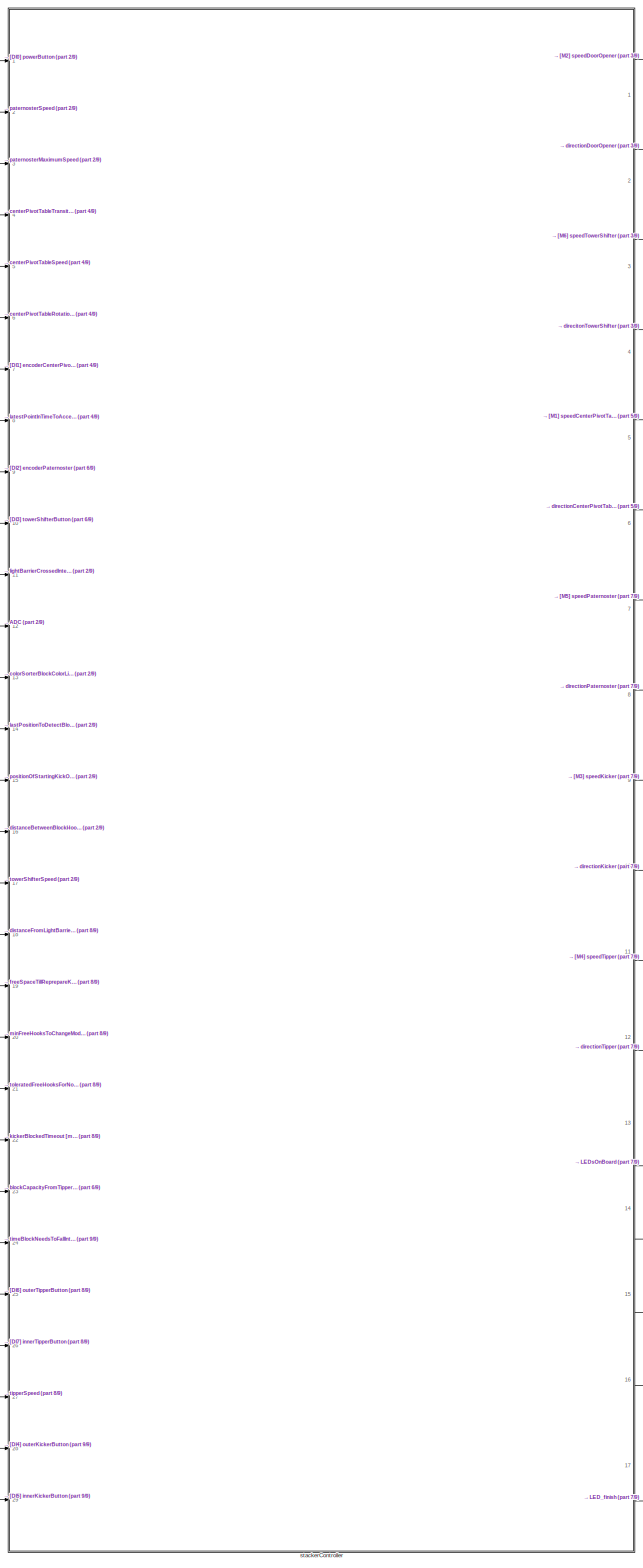
[diagram: root canvas - part 1/9, center side, full height]
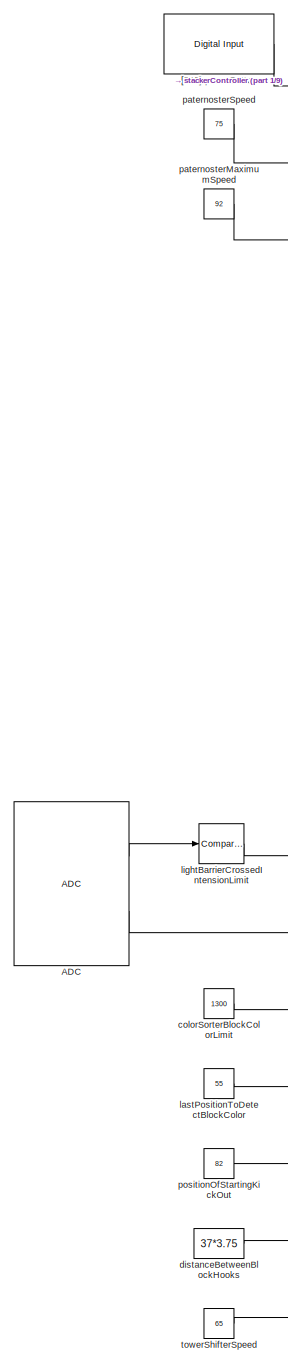
[diagram: root canvas - part 2/9, top left region]
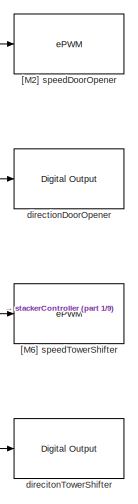
[diagram: root canvas - part 3/9, top right region]
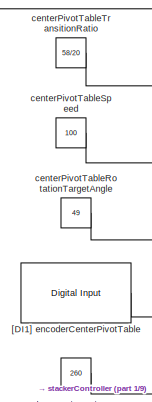
[diagram: root canvas - part 4/9, top left region]
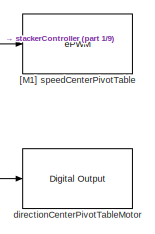
[diagram: root canvas - part 5/9, top right region]
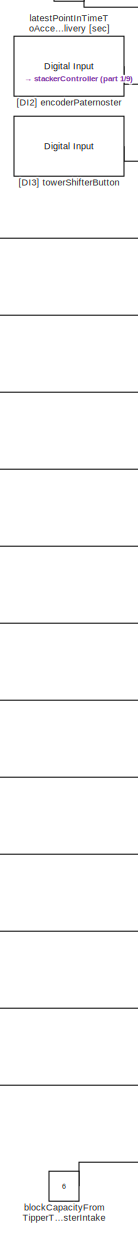
[diagram: root canvas - part 6/9, middle left region]
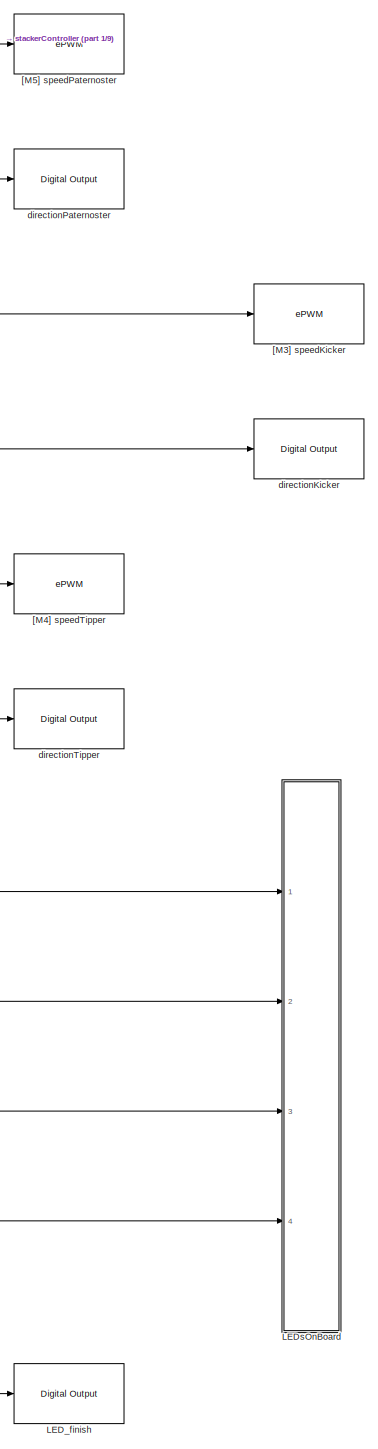
[diagram: root canvas - part 7/9, bottom right region]
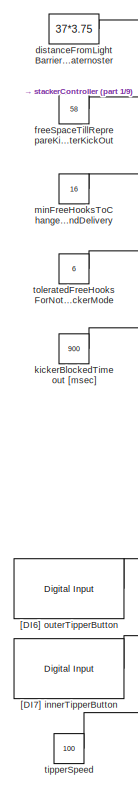
[diagram: root canvas - part 8/9, bottom left region]
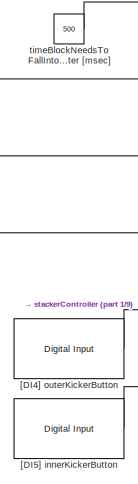
[diagram: root canvas - part 9/9, bottom left region]
MODEL slx_563816558440
KIND model
BLOCK [Reference] ADC  REF=c280xlib/ADC
  Ports = [0, 2]
  SourceBlock = c280xlib/ADC
  SourceType = C280x/C2833x ADC
  Ts = 0.001
  UserDataPersistent = on
  c28xmultiPort = on
  chdma = 1
  conv0 = ADCINA0
  conv1 = ADCINA1
  conv10 = ADCINB2
  conv11 = ADCINB3
  conv12 = ADCINB4
  conv13 = ADCINB5
  conv14 = ADCINB6
  conv15 = ADCINB7
  conv2 = ADCINA2
  conv3 = ADCINA3
  conv4 = ADCINA4
  conv5 = ADCINA5
  conv6 = ADCINA6
  conv7 = ADCINA7
  conv8 = ADCINB0
  conv9 = ADCINB1
  convA0 = ADCINA0
  convA1 = ADCINA1
  convA2 = ADCINA2
  convA3 = ADCINA3
  convA4 = ADCINA4
  convA5 = ADCINA5
  convA6 = ADCINA6
  convA7 = ADCINA7
  convAB0 = ADCINA0 and ADCINB0
  convAB1 = ADCINA1 and ADCINB1
  convAB2 = ADCINA2 and ADCINB2
  convAB3 = ADCINA3 and ADCINB3
  convAB4 = ADCINA4 and ADCINB4
  convAB5 = ADCINA5 and ADCINB5
  convAB6 = ADCINA6 and ADCINB6
  convAB7 = ADCINA7 and ADCINB7
  convB0 = ADCINB0
  convB1 = ADCINB1
  convB2 = ADCINB2
  convB3 = ADCINB3
  convB4 = ADCINB4
  convB5 = ADCINB5
  convB6 = ADCINB6
  convB7 = ADCINB7
  dType = uint16
  endma = off
  numConversionsDouble = 1
  numConversionsSingle = 2
  postInterrupt = off
  sourceSOC = Software
  sourceSOC1 = Software
  sourceSOC2 = ePWMxB
  useMode = Sequential
  useModule = A
  xint2_ADCSOC = 31
BLOCK [Reference] LED_finish  REF=c2833xlib/Digital Output
  GPIO_BIT0_Toggle = off
  GPIO_BIT1_Toggle = off
  GPIO_BIT2_Toggle = off
  GPIO_BIT3_Toggle = off
  GPIO_BIT4_Toggle = off
  GPIO_BIT5_Toggle = off
  GPIO_BIT6_Toggle = off
  GPIO_BIT7_Toggle = off
  GPIO_Bit0 = off
  GPIO_Bit1 = off
  GPIO_Bit2 = on
  GPIO_Bit3 = off
  GPIO_Bit4 = off
  GPIO_Bit5 = off
  GPIO_Bit6 = off
  GPIO_Bit7 = off
  GPIO_Number = GPIO32~GPIO39
  Ports = [1]
  SourceBlock = c2833xlib/Digital Output
  SourceType = C2833x GPIO Digital Output
  UserDataPersistent = on
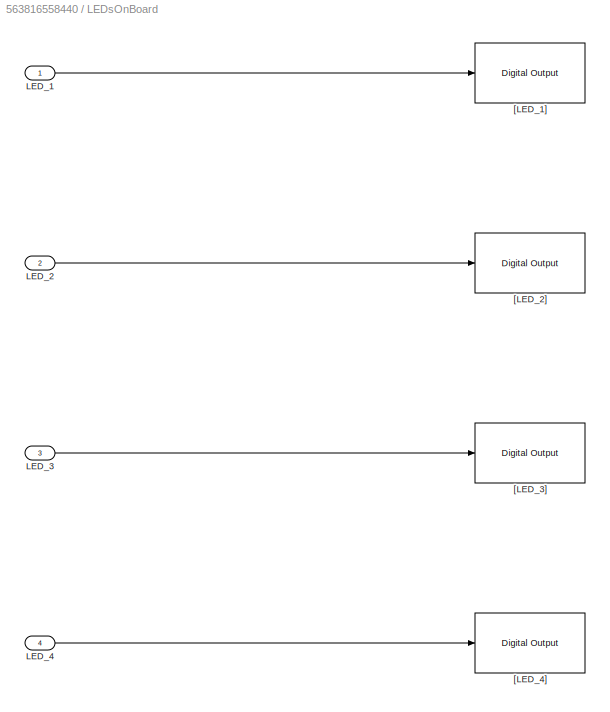
BLOCK [SubSystem] LEDsOnBoard
  Ports = [4]
  RequestExecContextInheritance = off
BLOCK [Inport] LEDsOnBoard/LED_1
  IconDisplay = Port number
BLOCK [Inport] LEDsOnBoard/LED_2
  IconDisplay = Port number
  Port = 2
BLOCK [Inport] LEDsOnBoard/LED_3
  IconDisplay = Port number
  Port = 3
BLOCK [Inport] LEDsOnBoard/LED_4
  IconDisplay = Port number
  Port = 4
BLOCK [Reference] LEDsOnBoard/[LED_1]  REF=c2833xlib/Digital Output
  GPIO_BIT0_Toggle = off
  GPIO_BIT1_Toggle = off
  GPIO_BIT2_Toggle = off
  GPIO_BIT3_Toggle = on
  GPIO_BIT4_Toggle = off
  GPIO_BIT5_Toggle = off
  GPIO_BIT6_Toggle = off
  GPIO_BIT7_Toggle = off
  GPIO_Bit0 = off
  GPIO_Bit1 = off
  GPIO_Bit2 = on
  GPIO_Bit3 = off
  GPIO_Bit4 = off
  GPIO_Bit5 = off
  GPIO_Bit6 = off
  GPIO_Bit7 = off
  GPIO_Number = GPIO56~GPIO63
  Ports = [1]
  SourceBlock = c2833xlib/Digital Output
  SourceType = C2833x GPIO Digital Output
  UserDataPersistent = on
BLOCK [Reference] LEDsOnBoard/[LED_2]  REF=c2833xlib/Digital Output
  GPIO_BIT0_Toggle = off
  GPIO_BIT1_Toggle = off
  GPIO_BIT2_Toggle = off
  GPIO_BIT3_Toggle = off
  GPIO_BIT4_Toggle = off
  GPIO_BIT5_Toggle = off
  GPIO_BIT6_Toggle = off
  GPIO_BIT7_Toggle = off
  GPIO_Bit0 = off
  GPIO_Bit1 = off
  GPIO_Bit2 = off
  GPIO_Bit3 = on
  GPIO_Bit4 = off
  GPIO_Bit5 = off
  GPIO_Bit6 = off
  GPIO_Bit7 = off
  GPIO_Number = GPIO56~GPIO63
  Ports = [1]
  SourceBlock = c2833xlib/Digital Output
  SourceType = C2833x GPIO Digital Output
  UserDataPersistent = on
BLOCK [Reference] LEDsOnBoard/[LED_3]  REF=c2833xlib/Digital Output
  GPIO_BIT0_Toggle = off
  GPIO_BIT1_Toggle = off
  GPIO_BIT2_Toggle = off
  GPIO_BIT3_Toggle = on
  GPIO_BIT4_Toggle = off
  GPIO_BIT5_Toggle = off
  GPIO_BIT6_Toggle = off
  GPIO_BIT7_Toggle = off
  GPIO_Bit0 = off
  GPIO_Bit1 = off
  GPIO_Bit2 = off
  GPIO_Bit3 = off
  GPIO_Bit4 = on
  GPIO_Bit5 = off
  GPIO_Bit6 = off
  GPIO_Bit7 = off
  GPIO_Number = GPIO56~GPIO63
  Ports = [1]
  SourceBlock = c2833xlib/Digital Output
  SourceType = C2833x GPIO Digital Output
  UserDataPersistent = on
BLOCK [Reference] LEDsOnBoard/[LED_4]  REF=c2833xlib/Digital Output
  GPIO_BIT0_Toggle = off
  GPIO_BIT1_Toggle = off
  GPIO_BIT2_Toggle = off
  GPIO_BIT3_Toggle = on
  GPIO_BIT4_Toggle = off
  GPIO_BIT5_Toggle = off
  GPIO_BIT6_Toggle = off
  GPIO_BIT7_Toggle = off
  GPIO_Bit0 = off
  GPIO_Bit1 = off
  GPIO_Bit2 = off
  GPIO_Bit3 = off
  GPIO_Bit4 = off
  GPIO_Bit5 = on
  GPIO_Bit6 = off
  GPIO_Bit7 = off
  GPIO_Number = GPIO56~GPIO63
  Ports = [1]
  SourceBlock = c2833xlib/Digital Output
  SourceType = C2833x GPIO Digital Output
  UserDataPersistent = on
BLOCK [Reference] [DI0] powerButton  REF=c2833xlib/Digital Input
  GPIO_Bit0 = on
  GPIO_Bit0_Qualification = Sync to SYSCLKOUT
  GPIO_Bit1 = off
  GPIO_Bit1_Qualification = Sync to SYSCLKOUT
  GPIO_Bit2 = off
  GPIO_Bit2_Qualification = Sync to SYSCLKOUT
  GPIO_Bit3 = off
  GPIO_Bit3_Qualification = Sync to SYSCLKOUT
  GPIO_Bit4 = off
  GPIO_Bit4_Qualification = Sync to SYSCLKOUT
  GPIO_Bit5 = off
  GPIO_Bit5_Qualification = Sync to SYSCLKOUT
  GPIO_Bit6 = off
  GPIO_Bit6_Qualification = Sync to SYSCLKOUT
  GPIO_Bit7 = off
  GPIO_Bit7_Qualification = Sync to SYSCLKOUT
  GPIO_Number = GPIO24~GPIO31
  Ports = [0, 1]
  Qualification_Period = -1
  SourceBlock = c2833xlib/Digital Input
  SourceType = C2833x GPIO Digital Input
  UserDataPersistent = on
  dataType = boolean
  sampleTime = 0.001
BLOCK [Reference] [DI1] encoderCenterPivotTable  REF=c2833xlib/Digital Input
  GPIO_Bit0 = off
  GPIO_Bit0_Qualification = Sync to SYSCLKOUT
  GPIO_Bit1 = on
  GPIO_Bit1_Qualification = Sync to SYSCLKOUT
  GPIO_Bit2 = off
  GPIO_Bit2_Qualification = Sync to SYSCLKOUT
  GPIO_Bit3 = off
  GPIO_Bit3_Qualification = Sync to SYSCLKOUT
  GPIO_Bit4 = off
  GPIO_Bit4_Qualification = Sync to SYSCLKOUT
  GPIO_Bit5 = off
  GPIO_Bit5_Qualification = Sync to SYSCLKOUT
  GPIO_Bit6 = off
  GPIO_Bit6_Qualification = Sync to SYSCLKOUT
  GPIO_Bit7 = off
  GPIO_Bit7_Qualification = Sync to SYSCLKOUT
  GPIO_Number = GPIO24~GPIO31
  Ports = [0, 1]
  Qualification_Period = -1
  SourceBlock = c2833xlib/Digital Input
  SourceType = C2833x GPIO Digital Input
  UserDataPersistent = on
  dataType = boolean
  sampleTime = 0.001
BLOCK [Reference] [DI2] encoderPaternoster  REF=c2833xlib/Digital Input
  GPIO_Bit0 = off
  GPIO_Bit0_Qualification = Sync to SYSCLKOUT
  GPIO_Bit1 = off
  GPIO_Bit1_Qualification = Sync to SYSCLKOUT
  GPIO_Bit2 = on
  GPIO_Bit2_Qualification = Sync to SYSCLKOUT
  GPIO_Bit3 = off
  GPIO_Bit3_Qualification = Sync to SYSCLKOUT
  GPIO_Bit4 = off
  GPIO_Bit4_Qualification = Sync to SYSCLKOUT
  GPIO_Bit5 = off
  GPIO_Bit5_Qualification = Sync to SYSCLKOUT
  GPIO_Bit6 = off
  GPIO_Bit6_Qualification = Sync to SYSCLKOUT
  GPIO_Bit7 = off
  GPIO_Bit7_Qualification = Sync to SYSCLKOUT
  GPIO_Number = GPIO24~GPIO31
  Ports = [0, 1]
  Qualification_Period = -1
  SourceBlock = c2833xlib/Digital Input
  SourceType = C2833x GPIO Digital Input
  UserDataPersistent = on
  dataType = auto
  sampleTime = 0.001
BLOCK [Reference] [DI3] towerShifterButton  REF=c2833xlib/Digital Input
  GPIO_Bit0 = off
  GPIO_Bit0_Qualification = Sync to SYSCLKOUT
  GPIO_Bit1 = off
  GPIO_Bit1_Qualification = Sync to SYSCLKOUT
  GPIO_Bit2 = off
  GPIO_Bit2_Qualification = Sync to SYSCLKOUT
  GPIO_Bit3 = on
  GPIO_Bit3_Qualification = Sync to SYSCLKOUT
  GPIO_Bit4 = off
  GPIO_Bit4_Qualification = Sync to SYSCLKOUT
  GPIO_Bit5 = off
  GPIO_Bit5_Qualification = Sync to SYSCLKOUT
  GPIO_Bit6 = off
  GPIO_Bit6_Qualification = Sync to SYSCLKOUT
  GPIO_Bit7 = off
  GPIO_Bit7_Qualification = Sync to SYSCLKOUT
  GPIO_Number = GPIO24~GPIO31
  Ports = [0, 1]
  Qualification_Period = -1
  SourceBlock = c2833xlib/Digital Input
  SourceType = C2833x GPIO Digital Input
  UserDataPersistent = on
  dataType = auto
  sampleTime = 0.001
BLOCK [Reference] [DI4] outerKickerButton  REF=c2833xlib/Digital Input
  GPIO_Bit0 = off
  GPIO_Bit0_Qualification = Sync to SYSCLKOUT
  GPIO_Bit1 = off
  GPIO_Bit1_Qualification = Sync to SYSCLKOUT
  GPIO_Bit2 = off
  GPIO_Bit2_Qualification = Sync to SYSCLKOUT
  GPIO_Bit3 = off
  GPIO_Bit3_Qualification = Sync to SYSCLKOUT
  GPIO_Bit4 = off
  GPIO_Bit4_Qualification = Sync to SYSCLKOUT
  GPIO_Bit5 = off
  GPIO_Bit5_Qualification = Sync to SYSCLKOUT
  GPIO_Bit6 = on
  GPIO_Bit6_Qualification = Sync to SYSCLKOUT
  GPIO_Bit7 = off
  GPIO_Bit7_Qualification = Sync to SYSCLKOUT
  GPIO_Number = GPIO24~GPIO31
  Ports = [0, 1]
  Qualification_Period = -1
  SourceBlock = c2833xlib/Digital Input
  SourceType = C2833x GPIO Digital Input
  UserDataPersistent = on
  dataType = boolean
  sampleTime = 0.001
BLOCK [Reference] [DI5] innerKickerButton  REF=c2833xlib/Digital Input
  GPIO_Bit0 = off
  GPIO_Bit0_Qualification = Sync to SYSCLKOUT
  GPIO_Bit1 = off
  GPIO_Bit1_Qualification = Sync to SYSCLKOUT
  GPIO_Bit2 = off
  GPIO_Bit2_Qualification = Sync to SYSCLKOUT
  GPIO_Bit3 = off
  GPIO_Bit3_Qualification = Sync to SYSCLKOUT
  GPIO_Bit4 = off
  GPIO_Bit4_Qualification = Sync to SYSCLKOUT
  GPIO_Bit5 = off
  GPIO_Bit5_Qualification = Sync to SYSCLKOUT
  GPIO_Bit6 = off
  GPIO_Bit6_Qualification = Sync to SYSCLKOUT
  GPIO_Bit7 = on
  GPIO_Bit7_Qualification = Sync to SYSCLKOUT
  GPIO_Number = GPIO24~GPIO31
  Ports = [0, 1]
  Qualification_Period = -1
  SourceBlock = c2833xlib/Digital Input
  SourceType = C2833x GPIO Digital Input
  UserDataPersistent = on
  dataType = boolean
  sampleTime = 0.001
BLOCK [Reference] [DI6] outerTipperButton  REF=c2833xlib/Digital Input
  GPIO_Bit0 = on
  GPIO_Bit0_Qualification = Sync to SYSCLKOUT
  GPIO_Bit1 = off
  GPIO_Bit1_Qualification = Sync to SYSCLKOUT
  GPIO_Bit2 = off
  GPIO_Bit2_Qualification = Sync to SYSCLKOUT
  GPIO_Bit3 = off
  GPIO_Bit3_Qualification = Sync to SYSCLKOUT
  GPIO_Bit4 = off
  GPIO_Bit4_Qualification = Sync to SYSCLKOUT
  GPIO_Bit5 = off
  GPIO_Bit5_Qualification = Sync to SYSCLKOUT
  GPIO_Bit6 = off
  GPIO_Bit6_Qualification = Sync to SYSCLKOUT
  GPIO_Bit7 = off
  GPIO_Bit7_Qualification = Sync to SYSCLKOUT
  GPIO_Number = GPIO32~GPIO39
  Ports = [0, 1]
  Qualification_Period = -1
  SourceBlock = c2833xlib/Digital Input
  SourceType = C2833x GPIO Digital Input
  UserDataPersistent = on
  dataType = boolean
  sampleTime = 0.001
BLOCK [Reference] [DI7] innerTipperButton  REF=c2833xlib/Digital Input
  GPIO_Bit0 = off
  GPIO_Bit0_Qualification = Sync to SYSCLKOUT
  GPIO_Bit1 = on
  GPIO_Bit1_Qualification = Sync to SYSCLKOUT
  GPIO_Bit2 = off
  GPIO_Bit2_Qualification = Sync to SYSCLKOUT
  GPIO_Bit3 = off
  GPIO_Bit3_Qualification = Sync to SYSCLKOUT
  GPIO_Bit4 = off
  GPIO_Bit4_Qualification = Sync to SYSCLKOUT
  GPIO_Bit5 = off
  GPIO_Bit5_Qualification = Sync to SYSCLKOUT
  GPIO_Bit6 = off
  GPIO_Bit6_Qualification = Sync to SYSCLKOUT
  GPIO_Bit7 = off
  GPIO_Bit7_Qualification = Sync to SYSCLKOUT
  GPIO_Number = GPIO32~GPIO39
  Ports = [0, 1]
  Qualification_Period = -1
  SourceBlock = c2833xlib/Digital Input
  SourceType = C2833x GPIO Digital Input
  UserDataPersistent = on
  dataType = boolean
  sampleTime = 0.001
BLOCK [Reference] [M1] speedCenterPivotTable  REF=c280xlib/ePWM
  CMPASource = Specify via dialog
  CMPAUnits = Clock cycles
  CMPAValue_clk = 32000
  CMPAValue_per = 50
  CMPBSource = Input port
  CMPBUnits = Percentages
  CMPBValue_clk = 32000
  CMPBValue_per = 0
  DBSource_ePWMxA = ePWMxA
  DBSource_ePWMxB = ePWMxA
  DBedgeDelay = Positive
  DBperiodSource = Specify via dialog
  DBpolarity = Active high (AH)
  FEDperiod = 0
  HRPWM_CTLMode = Phase control mode
  HRPWM_EDGMode = Both edge
  HRPWM_LoadMode = Counter equals to zero (CTR=ZERO)
  HSclockPrescale = 1
  Ports = [1]
  REDperiod = 0
  SourceBlock = c280xlib/ePWM
  SourceType = C280x/C2833x ePWM
  adcrequestEventA = First event
  adcrequestEventB = First event
  adcstartEventA = Counter equals to zero (CTR=Zero)
  adcstartEventB = Counter equals to zero (CTR=Zero)
  adcstartModuleA = off
  adcstartModuleB = off
  checkMode = off
  chopperDuty = 12.5%
  chopperEnable = off
  chopperFirstwidth = 1
  chopperFrequency = 1
  clockPrescale = 1
  countingMode = Up
  ePWMxACSFenable = off
  ePWMxACSFvalue = Forcing disable
  ePWMxALoadMode = Load on counter equals to zero (CTR=Zero)
  ePWMxASFreload = Zero
  ePWMxAStatus = off
  ePWMxAValue = 0
  ePWMxAactionLogic1 = Do nothing
  ePWMxAactionLogic2 = Clear
  ePWMxAactionLogic3 = Set
  ePWMxAactionLogic4 = Do nothing
  ePWMxAactionLogic5 = Do nothing
  ePWMxAactionLogic6 = Do nothing
  ePWMxAforced = No action
  ePWMxBCSFenable = off
  ePWMxBCSFvalue = Forcing disable
  ePWMxBLoadMode = Load on counter equals to zero (CTR=Zero)
  ePWMxBSFreload = Zero
  ePWMxBStatus = on
  ePWMxBValue = 0
  ePWMxBactionLogic1 = Do nothing
  ePWMxBactionLogic2 = Set
  ePWMxBactionLogic3 = Do nothing
  ePWMxBactionLogic4 = Do nothing
  ePWMxBactionLogic5 = Clear
  ePWMxBactionLogic6 = Do nothing
  ePWMxBforced = No action
  enCMPAshadow = Counter equals to zero
  enCMPBshadow = Counter equals to zero
  enHRPWM = off
  enSFO = on
  enTzCbcIntr = off
  enTzOstIntr = off
  enableDBePWMxA = off
  enableDBePWMxB = off
  intEn = off
  intPrd = First event
  intSel = Counter equals to zero (CTR=Zero)
  periodUnits = Clock cycles
  phaseActive = 0
  phaseActiveEnable = Disable
  phaseDirection = Count down after sync
  synchronizationEnable = off
  synchronizationOption = Disable
  tbshadow = Counter equals to zero
  timerPeriod = -1
  timerPeriod_clk = 64000
  timerPeriod_sec = 0.0001
  timerSource = Specify via dialog
  tripZoneoption = One-shot trip (OSHT)
  tripZonesource = Specify via dialog
  tzselCBC1 = off
  tzselCBC2 = off
  tzselCBC3 = off
  tzselCBC4 = off
  tzselCBC5 = off
  tzselCBC6 = off
  tzselOSHT1 = off
  tzselOSHT2 = off
  tzselOSHT3 = off
  tzselOSHT4 = off
  tzselOSHT5 = off
  tzselOSHT6 = off
  useModule = ePWM2
BLOCK [Reference] [M2] speedDoorOpener  REF=c280xlib/ePWM
  CMPASource = Specify via dialog
  CMPAUnits = Clock cycles
  CMPAValue_clk = 32000
  CMPAValue_per = 50
  CMPBSource = Input port
  CMPBUnits = Percentages
  CMPBValue_clk = 32000
  CMPBValue_per = 0
  DBSource_ePWMxA = ePWMxA
  DBSource_ePWMxB = ePWMxA
  DBedgeDelay = Positive
  DBperiodSource = Specify via dialog
  DBpolarity = Active high (AH)
  FEDperiod = 0
  HRPWM_CTLMode = Phase control mode
  HRPWM_EDGMode = Both edge
  HRPWM_LoadMode = Counter equals to zero (CTR=ZERO)
  HSclockPrescale = 1
  Ports = [1]
  REDperiod = 0
  SourceBlock = c280xlib/ePWM
  SourceType = C280x/C2833x ePWM
  adcrequestEventA = First event
  adcrequestEventB = First event
  adcstartEventA = Counter equals to zero (CTR=Zero)
  adcstartEventB = Counter equals to zero (CTR=Zero)
  adcstartModuleA = off
  adcstartModuleB = off
  checkMode = off
  chopperDuty = 12.5%
  chopperEnable = off
  chopperFirstwidth = 1
  chopperFrequency = 1
  clockPrescale = 1
  countingMode = Up
  ePWMxACSFenable = off
  ePWMxACSFvalue = Forcing disable
  ePWMxALoadMode = Load on counter equals to zero (CTR=Zero)
  ePWMxASFreload = Zero
  ePWMxAStatus = off
  ePWMxAValue = 0
  ePWMxAactionLogic1 = Do nothing
  ePWMxAactionLogic2 = Clear
  ePWMxAactionLogic3 = Set
  ePWMxAactionLogic4 = Do nothing
  ePWMxAactionLogic5 = Do nothing
  ePWMxAactionLogic6 = Do nothing
  ePWMxAforced = No action
  ePWMxBCSFenable = off
  ePWMxBCSFvalue = Forcing disable
  ePWMxBLoadMode = Load on counter equals to zero (CTR=Zero)
  ePWMxBSFreload = Zero
  ePWMxBStatus = on
  ePWMxBValue = 0
  ePWMxBactionLogic1 = Do nothing
  ePWMxBactionLogic2 = Set
  ePWMxBactionLogic3 = Do nothing
  ePWMxBactionLogic4 = Do nothing
  ePWMxBactionLogic5 = Clear
  ePWMxBactionLogic6 = Do nothing
  ePWMxBforced = No action
  enCMPAshadow = Counter equals to zero
  enCMPBshadow = Counter equals to zero
  enHRPWM = off
  enSFO = on
  enTzCbcIntr = off
  enTzOstIntr = off
  enableDBePWMxA = off
  enableDBePWMxB = off
  intEn = off
  intPrd = First event
  intSel = Counter equals to zero (CTR=Zero)
  periodUnits = Clock cycles
  phaseActive = 0
  phaseActiveEnable = Disable
  phaseDirection = Count down after sync
  synchronizationEnable = off
  synchronizationOption = Disable
  tbshadow = Counter equals to zero
  timerPeriod = -1
  timerPeriod_clk = 64000
  timerPeriod_sec = 0.0001
  timerSource = Specify via dialog
  tripZoneoption = One-shot trip (OSHT)
  tripZonesource = Specify via dialog
  tzselCBC1 = off
  tzselCBC2 = off
  tzselCBC3 = off
  tzselCBC4 = off
  tzselCBC5 = off
  tzselCBC6 = off
  tzselOSHT1 = off
  tzselOSHT2 = off
  tzselOSHT3 = off
  tzselOSHT4 = off
  tzselOSHT5 = off
  tzselOSHT6 = off
  useModule = ePWM1
BLOCK [Reference] [M3] speedKicker  REF=c280xlib/ePWM
  CMPASource = Specify via dialog
  CMPAUnits = Clock cycles
  CMPAValue_clk = 32000
  CMPAValue_per = 50
  CMPBSource = Input port
  CMPBUnits = Percentages
  CMPBValue_clk = 32000
  CMPBValue_per = 0
  DBSource_ePWMxA = ePWMxA
  DBSource_ePWMxB = ePWMxA
  DBedgeDelay = Positive
  DBperiodSource = Specify via dialog
  DBpolarity = Active high (AH)
  FEDperiod = 0
  HRPWM_CTLMode = Phase control mode
  HRPWM_EDGMode = Both edge
  HRPWM_LoadMode = Counter equals to zero (CTR=ZERO)
  HSclockPrescale = 1
  Ports = [1]
  REDperiod = 0
  SourceBlock = c280xlib/ePWM
  SourceType = C280x/C2833x ePWM
  adcrequestEventA = First event
  adcrequestEventB = First event
  adcstartEventA = Counter equals to zero (CTR=Zero)
  adcstartEventB = Counter equals to zero (CTR=Zero)
  adcstartModuleA = off
  adcstartModuleB = off
  checkMode = off
  chopperDuty = 12.5%
  chopperEnable = off
  chopperFirstwidth = 1
  chopperFrequency = 1
  clockPrescale = 1
  countingMode = Up
  ePWMxACSFenable = off
  ePWMxACSFvalue = Forcing disable
  ePWMxALoadMode = Load on counter equals to zero (CTR=Zero)
  ePWMxASFreload = Zero
  ePWMxAStatus = off
  ePWMxAValue = 0
  ePWMxAactionLogic1 = Do nothing
  ePWMxAactionLogic2 = Clear
  ePWMxAactionLogic3 = Set
  ePWMxAactionLogic4 = Do nothing
  ePWMxAactionLogic5 = Do nothing
  ePWMxAactionLogic6 = Do nothing
  ePWMxAforced = No action
  ePWMxBCSFenable = off
  ePWMxBCSFvalue = Forcing disable
  ePWMxBLoadMode = Load on counter equals to zero (CTR=Zero)
  ePWMxBSFreload = Zero
  ePWMxBStatus = on
  ePWMxBValue = 0
  ePWMxBactionLogic1 = Do nothing
  ePWMxBactionLogic2 = Set
  ePWMxBactionLogic3 = Do nothing
  ePWMxBactionLogic4 = Do nothing
  ePWMxBactionLogic5 = Clear
  ePWMxBactionLogic6 = Do nothing
  ePWMxBforced = No action
  enCMPAshadow = Counter equals to zero
  enCMPBshadow = Counter equals to zero
  enHRPWM = off
  enSFO = on
  enTzCbcIntr = off
  enTzOstIntr = off
  enableDBePWMxA = off
  enableDBePWMxB = off
  intEn = off
  intPrd = First event
  intSel = Counter equals to zero (CTR=Zero)
  periodUnits = Clock cycles
  phaseActive = 0
  phaseActiveEnable = Disable
  phaseDirection = Count down after sync
  synchronizationEnable = off
  synchronizationOption = Disable
  tbshadow = Counter equals to zero
  timerPeriod = -1
  timerPeriod_clk = 64000
  timerPeriod_sec = 0.0001
  timerSource = Specify via dialog
  tripZoneoption = One-shot trip (OSHT)
  tripZonesource = Specify via dialog
  tzselCBC1 = off
  tzselCBC2 = off
  tzselCBC3 = off
  tzselCBC4 = off
  tzselCBC5 = off
  tzselCBC6 = off
  tzselOSHT1 = off
  tzselOSHT2 = off
  tzselOSHT3 = off
  tzselOSHT4 = off
  tzselOSHT5 = off
  tzselOSHT6 = off
  useModule = ePWM6
BLOCK [Reference] [M4] speedTipper  REF=c280xlib/ePWM
  CMPASource = Specify via dialog
  CMPAUnits = Clock cycles
  CMPAValue_clk = 32000
  CMPAValue_per = 50
  CMPBSource = Input port
  CMPBUnits = Percentages
  CMPBValue_clk = 32000
  CMPBValue_per = 0
  DBSource_ePWMxA = ePWMxA
  DBSource_ePWMxB = ePWMxA
  DBedgeDelay = Positive
  DBperiodSource = Specify via dialog
  DBpolarity = Active high (AH)
  FEDperiod = 0
  HRPWM_CTLMode = Phase control mode
  HRPWM_EDGMode = Both edge
  HRPWM_LoadMode = Counter equals to zero (CTR=ZERO)
  HSclockPrescale = 1
  Ports = [1]
  REDperiod = 0
  SourceBlock = c280xlib/ePWM
  SourceType = C280x/C2833x ePWM
  adcrequestEventA = First event
  adcrequestEventB = First event
  adcstartEventA = Counter equals to zero (CTR=Zero)
  adcstartEventB = Counter equals to zero (CTR=Zero)
  adcstartModuleA = off
  adcstartModuleB = off
  checkMode = off
  chopperDuty = 12.5%
  chopperEnable = off
  chopperFirstwidth = 1
  chopperFrequency = 1
  clockPrescale = 1
  countingMode = Up
  ePWMxACSFenable = off
  ePWMxACSFvalue = Forcing disable
  ePWMxALoadMode = Load on counter equals to zero (CTR=Zero)
  ePWMxASFreload = Zero
  ePWMxAStatus = off
  ePWMxAValue = 0
  ePWMxAactionLogic1 = Do nothing
  ePWMxAactionLogic2 = Clear
  ePWMxAactionLogic3 = Set
  ePWMxAactionLogic4 = Do nothing
  ePWMxAactionLogic5 = Do nothing
  ePWMxAactionLogic6 = Do nothing
  ePWMxAforced = No action
  ePWMxBCSFenable = off
  ePWMxBCSFvalue = Forcing disable
  ePWMxBLoadMode = Load on counter equals to zero (CTR=Zero)
  ePWMxBSFreload = Zero
  ePWMxBStatus = on
  ePWMxBValue = 0
  ePWMxBactionLogic1 = Do nothing
  ePWMxBactionLogic2 = Set
  ePWMxBactionLogic3 = Do nothing
  ePWMxBactionLogic4 = Do nothing
  ePWMxBactionLogic5 = Clear
  ePWMxBactionLogic6 = Do nothing
  ePWMxBforced = No action
  enCMPAshadow = Counter equals to zero
  enCMPBshadow = Counter equals to zero
  enHRPWM = off
  enSFO = on
  enTzCbcIntr = off
  enTzOstIntr = off
  enableDBePWMxA = off
  enableDBePWMxB = off
  intEn = off
  intPrd = First event
  intSel = Counter equals to zero (CTR=Zero)
  periodUnits = Clock cycles
  phaseActive = 0
  phaseActiveEnable = Disable
  phaseDirection = Count down after sync
  synchronizationEnable = off
  synchronizationOption = Disable
  tbshadow = Counter equals to zero
  timerPeriod = -1
  timerPeriod_clk = 64000
  timerPeriod_sec = 0.0001
  timerSource = Specify via dialog
  tripZoneoption = One-shot trip (OSHT)
  tripZonesource = Specify via dialog
  tzselCBC1 = off
  tzselCBC2 = off
  tzselCBC3 = off
  tzselCBC4 = off
  tzselCBC5 = off
  tzselCBC6 = off
  tzselOSHT1 = off
  tzselOSHT2 = off
  tzselOSHT3 = off
  tzselOSHT4 = off
  tzselOSHT5 = off
  tzselOSHT6 = off
  useModule = ePWM5
BLOCK [Reference] [M5] speedPaternoster  REF=c280xlib/ePWM
  CMPASource = Specify via dialog
  CMPAUnits = Clock cycles
  CMPAValue_clk = 32000
  CMPAValue_per = 50
  CMPBSource = Input port
  CMPBUnits = Percentages
  CMPBValue_clk = 32000
  CMPBValue_per = 0
  DBSource_ePWMxA = ePWMxA
  DBSource_ePWMxB = ePWMxA
  DBedgeDelay = Positive
  DBperiodSource = Specify via dialog
  DBpolarity = Active high (AH)
  FEDperiod = 0
  HRPWM_CTLMode = Phase control mode
  HRPWM_EDGMode = Both edge
  HRPWM_LoadMode = Counter equals to zero (CTR=ZERO)
  HSclockPrescale = 1
  Ports = [1]
  REDperiod = 0
  SourceBlock = c280xlib/ePWM
  SourceType = C280x/C2833x ePWM
  adcrequestEventA = First event
  adcrequestEventB = First event
  adcstartEventA = Counter equals to zero (CTR=Zero)
  adcstartEventB = Counter equals to zero (CTR=Zero)
  adcstartModuleA = off
  adcstartModuleB = off
  checkMode = off
  chopperDuty = 12.5%
  chopperEnable = off
  chopperFirstwidth = 1
  chopperFrequency = 1
  clockPrescale = 1
  countingMode = Up
  ePWMxACSFenable = off
  ePWMxACSFvalue = Forcing disable
  ePWMxALoadMode = Load on counter equals to zero (CTR=Zero)
  ePWMxASFreload = Zero
  ePWMxAStatus = off
  ePWMxAValue = 0
  ePWMxAactionLogic1 = Do nothing
  ePWMxAactionLogic2 = Clear
  ePWMxAactionLogic3 = Set
  ePWMxAactionLogic4 = Do nothing
  ePWMxAactionLogic5 = Do nothing
  ePWMxAactionLogic6 = Do nothing
  ePWMxAforced = No action
  ePWMxBCSFenable = off
  ePWMxBCSFvalue = Forcing disable
  ePWMxBLoadMode = Load on counter equals to zero (CTR=Zero)
  ePWMxBSFreload = Zero
  ePWMxBStatus = on
  ePWMxBValue = 0
  ePWMxBactionLogic1 = Do nothing
  ePWMxBactionLogic2 = Set
  ePWMxBactionLogic3 = Do nothing
  ePWMxBactionLogic4 = Do nothing
  ePWMxBactionLogic5 = Clear
  ePWMxBactionLogic6 = Do nothing
  ePWMxBforced = No action
  enCMPAshadow = Counter equals to zero
  enCMPBshadow = Counter equals to zero
  enHRPWM = off
  enSFO = on
  enTzCbcIntr = off
  enTzOstIntr = off
  enableDBePWMxA = off
  enableDBePWMxB = off
  intEn = off
  intPrd = First event
  intSel = Counter equals to zero (CTR=Zero)
  periodUnits = Clock cycles
  phaseActive = 0
  phaseActiveEnable = Disable
  phaseDirection = Count down after sync
  synchronizationEnable = off
  synchronizationOption = Disable
  tbshadow = Counter equals to zero
  timerPeriod = -1
  timerPeriod_clk = 64000
  timerPeriod_sec = 0.0001
  timerSource = Specify via dialog
  tripZoneoption = One-shot trip (OSHT)
  tripZonesource = Specify via dialog
  tzselCBC1 = off
  tzselCBC2 = off
  tzselCBC3 = off
  tzselCBC4 = off
  tzselCBC5 = off
  tzselCBC6 = off
  tzselOSHT1 = off
  tzselOSHT2 = off
  tzselOSHT3 = off
  tzselOSHT4 = off
  tzselOSHT5 = off
  tzselOSHT6 = off
  useModule = ePWM4
BLOCK [Reference] [M6] speedTowerShifter  REF=c280xlib/ePWM
  CMPASource = Specify via dialog
  CMPAUnits = Clock cycles
  CMPAValue_clk = 32000
  CMPAValue_per = 50
  CMPBSource = Input port
  CMPBUnits = Percentages
  CMPBValue_clk = 32000
  CMPBValue_per = 0
  DBSource_ePWMxA = ePWMxA
  DBSource_ePWMxB = ePWMxA
  DBedgeDelay = Positive
  DBperiodSource = Specify via dialog
  DBpolarity = Active high (AH)
  FEDperiod = 0
  HRPWM_CTLMode = Phase control mode
  HRPWM_EDGMode = Both edge
  HRPWM_LoadMode = Counter equals to zero (CTR=ZERO)
  HSclockPrescale = 1
  Ports = [1]
  REDperiod = 0
  SourceBlock = c280xlib/ePWM
  SourceType = C280x/C2833x ePWM
  adcrequestEventA = First event
  adcrequestEventB = First event
  adcstartEventA = Counter equals to zero (CTR=Zero)
  adcstartEventB = Counter equals to zero (CTR=Zero)
  adcstartModuleA = off
  adcstartModuleB = off
  checkMode = off
  chopperDuty = 12.5%
  chopperEnable = off
  chopperFirstwidth = 1
  chopperFrequency = 1
  clockPrescale = 1
  countingMode = Up
  ePWMxACSFenable = off
  ePWMxACSFvalue = Forcing disable
  ePWMxALoadMode = Load on counter equals to zero (CTR=Zero)
  ePWMxASFreload = Zero
  ePWMxAStatus = off
  ePWMxAValue = 0
  ePWMxAactionLogic1 = Do nothing
  ePWMxAactionLogic2 = Clear
  ePWMxAactionLogic3 = Set
  ePWMxAactionLogic4 = Do nothing
  ePWMxAactionLogic5 = Do nothing
  ePWMxAactionLogic6 = Do nothing
  ePWMxAforced = No action
  ePWMxBCSFenable = off
  ePWMxBCSFvalue = Forcing disable
  ePWMxBLoadMode = Load on counter equals to zero (CTR=Zero)
  ePWMxBSFreload = Zero
  ePWMxBStatus = on
  ePWMxBValue = 0
  ePWMxBactionLogic1 = Do nothing
  ePWMxBactionLogic2 = Set
  ePWMxBactionLogic3 = Do nothing
  ePWMxBactionLogic4 = Do nothing
  ePWMxBactionLogic5 = Clear
  ePWMxBactionLogic6 = Do nothing
  ePWMxBforced = No action
  enCMPAshadow = Counter equals to zero
  enCMPBshadow = Counter equals to zero
  enHRPWM = off
  enSFO = on
  enTzCbcIntr = off
  enTzOstIntr = off
  enableDBePWMxA = off
  enableDBePWMxB = off
  intEn = off
  intPrd = First event
  intSel = Counter equals to zero (CTR=Zero)
  periodUnits = Clock cycles
  phaseActive = 0
  phaseActiveEnable = Disable
  phaseDirection = Count down after sync
  synchronizationEnable = off
  synchronizationOption = Disable
  tbshadow = Counter equals to zero
  timerPeriod = -1
  timerPeriod_clk = 64000
  timerPeriod_sec = 0.0001
  timerSource = Specify via dialog
  tripZoneoption = One-shot trip (OSHT)
  tripZonesource = Specify via dialog
  tzselCBC1 = off
  tzselCBC2 = off
  tzselCBC3 = off
  tzselCBC4 = off
  tzselCBC5 = off
  tzselCBC6 = off
  tzselOSHT1 = off
  tzselOSHT2 = off
  tzselOSHT3 = off
  tzselOSHT4 = off
  tzselOSHT5 = off
  tzselOSHT6 = off
  useModule = ePWM3
BLOCK [Constant] blockCapacityFromTipperToPaternosterIntake
  OutDataTypeStr = uint16
  OutMin = 0
  Value = 6
BLOCK [Constant] centerPivotTableRotationTargetAngle
  OutDataTypeStr = single
  Value = 49
BLOCK [Constant] centerPivotTableSpeed
  OutDataTypeStr = uint16
  OutMax = 100
  OutMin = 0
  Value = 100
BLOCK [Constant] centerPivotTableTransitionRatio
  OutDataTypeStr = single
  Value = 58/20
BLOCK [Constant] colorSorterBlockColorLimit
  OutDataTypeStr = uint16
  OutMax = 4095
  OutMin = 0
  Value = 1300
BLOCK [Reference] direcitonTowerShifter  REF=c2833xlib/Digital Output
  GPIO_BIT0_Toggle = off
  GPIO_BIT1_Toggle = off
  GPIO_BIT2_Toggle = off
  GPIO_BIT3_Toggle = off
  GPIO_BIT4_Toggle = off
  GPIO_BIT5_Toggle = off
  GPIO_BIT6_Toggle = off
  GPIO_BIT7_Toggle = off
  GPIO_Bit0 = off
  GPIO_Bit1 = on
  GPIO_Bit2 = off
  GPIO_Bit3 = off
  GPIO_Bit4 = off
  GPIO_Bit5 = off
  GPIO_Bit6 = off
  GPIO_Bit7 = off
  GPIO_Number = GPIO16~GPIO23
  Ports = [1]
  SourceBlock = c2833xlib/Digital Output
  SourceType = C2833x GPIO Digital Output
  UserDataPersistent = on
BLOCK [Reference] directionCenterPivotTableMotor  REF=c2833xlib/Digital Output
  GPIO_BIT0_Toggle = off
  GPIO_BIT1_Toggle = off
  GPIO_BIT2_Toggle = off
  GPIO_BIT3_Toggle = off
  GPIO_BIT4_Toggle = off
  GPIO_BIT5_Toggle = off
  GPIO_BIT6_Toggle = off
  GPIO_BIT7_Toggle = off
  GPIO_Bit0 = off
  GPIO_Bit1 = off
  GPIO_Bit2 = off
  GPIO_Bit3 = off
  GPIO_Bit4 = off
  GPIO_Bit5 = on
  GPIO_Bit6 = off
  GPIO_Bit7 = off
  GPIO_Number = GPIO16~GPIO23
  Ports = [1]
  SourceBlock = c2833xlib/Digital Output
  SourceType = C2833x GPIO Digital Output
  UserDataPersistent = on
BLOCK [Reference] directionDoorOpener  REF=c2833xlib/Digital Output
  GPIO_BIT0_Toggle = off
  GPIO_BIT1_Toggle = off
  GPIO_BIT2_Toggle = off
  GPIO_BIT3_Toggle = off
  GPIO_BIT4_Toggle = off
  GPIO_BIT5_Toggle = off
  GPIO_BIT6_Toggle = off
  GPIO_BIT7_Toggle = off
  GPIO_Bit0 = off
  GPIO_Bit1 = off
  GPIO_Bit2 = off
  GPIO_Bit3 = off
  GPIO_Bit4 = on
  GPIO_Bit5 = off
  GPIO_Bit6 = off
  GPIO_Bit7 = off
  GPIO_Number = GPIO16~GPIO23
  Ports = [1]
  SourceBlock = c2833xlib/Digital Output
  SourceType = C2833x GPIO Digital Output
  UserDataPersistent = on
BLOCK [Reference] directionKicker  REF=c2833xlib/Digital Output
  GPIO_BIT0_Toggle = off
  GPIO_BIT1_Toggle = off
  GPIO_BIT2_Toggle = off
  GPIO_BIT3_Toggle = off
  GPIO_BIT4_Toggle = off
  GPIO_BIT5_Toggle = off
  GPIO_BIT6_Toggle = off
  GPIO_BIT7_Toggle = off
  GPIO_Bit0 = on
  GPIO_Bit1 = off
  GPIO_Bit2 = off
  GPIO_Bit3 = off
  GPIO_Bit4 = off
  GPIO_Bit5 = off
  GPIO_Bit6 = off
  GPIO_Bit7 = off
  GPIO_Number = GPIO16~GPIO23
  Ports = [1]
  SourceBlock = c2833xlib/Digital Output
  SourceType = C2833x GPIO Digital Output
  UserDataPersistent = on
BLOCK [Reference] directionPaternoster  REF=c2833xlib/Digital Output
  GPIO_BIT0_Toggle = off
  GPIO_BIT1_Toggle = off
  GPIO_BIT2_Toggle = off
  GPIO_BIT3_Toggle = off
  GPIO_BIT4_Toggle = off
  GPIO_BIT5_Toggle = off
  GPIO_BIT6_Toggle = off
  GPIO_BIT7_Toggle = off
  GPIO_Bit0 = off
  GPIO_Bit1 = off
  GPIO_Bit2 = off
  GPIO_Bit3 = on
  GPIO_Bit4 = off
  GPIO_Bit5 = off
  GPIO_Bit6 = off
  GPIO_Bit7 = off
  GPIO_Number = GPIO16~GPIO23
  Ports = [1]
  SourceBlock = c2833xlib/Digital Output
  SourceType = C2833x GPIO Digital Output
  UserDataPersistent = on
BLOCK [Reference] directionTipper  REF=c2833xlib/Digital Output
  GPIO_BIT0_Toggle = off
  GPIO_BIT1_Toggle = off
  GPIO_BIT2_Toggle = off
  GPIO_BIT3_Toggle = off
  GPIO_BIT4_Toggle = off
  GPIO_BIT5_Toggle = off
  GPIO_BIT6_Toggle = off
  GPIO_BIT7_Toggle = off
  GPIO_Bit0 = off
  GPIO_Bit1 = off
  GPIO_Bit2 = off
  GPIO_Bit3 = off
  GPIO_Bit4 = off
  GPIO_Bit5 = off
  GPIO_Bit6 = off
  GPIO_Bit7 = on
  GPIO_Number = GPIO8~GPIO15
  Ports = [1]
  SourceBlock = c2833xlib/Digital Output
  SourceType = C2833x GPIO Digital Output
  UserDataPersistent = on
BLOCK [Constant] distanceBetweenBlockHooks
  OutDataTypeStr = uint16
  OutMin = 0
  Value = 37*3.75
BLOCK [Constant] distanceFromLightBarrierToTDCOfPaternoster
  OutDataTypeStr = uint16
  OutMin = 0
  Value = 37*3.75
BLOCK [Constant] freeSpaceTillReprepareKickerAfterKickOut
  OutDataTypeStr = uint32
  OutMin = 0
  Value = 58
BLOCK [Constant] kickerBlockedTimeout [msec]
  OutDataTypeStr = uint16
  OutMin = 0
  Value = 900
BLOCK [Constant] lastPositionToDetectBlockColor
  OutDataTypeStr = uint32
  OutMin = 0
  Value = 55
BLOCK [Constant] latestPointInTimeToAcceptBlockDelivery [sec]
  OutDataTypeStr = uint16
  OutMax = 300
  OutMin = 0
  Value = 260
BLOCK [Reference] lightBarrierCrossedIntensionLimit  REF=simulink/Logic and Bit
Operations/Compare
To Constant
  OutDataTypeStr = boolean
  Ports = [1, 1]
  SourceBlock = simulink/Logic and Bit\nOperations/Compare\nTo Constant
  SourceType = Compare To Constant
  ZeroCross = on
  const = 1350
  relop = <
BLOCK [Constant] minFreeHooksToChangeModeToWaitingForSecondDelivery
  OutDataTypeStr = uint16
  OutMin = 0
  Value = 16
BLOCK [Constant] paternosterMaximumSpeed
  OutDataTypeStr = uint16
  OutMax = 100
  OutMin = 0
  Value = 92
BLOCK [Constant] paternosterSpeed
  OutDataTypeStr = uint16
  OutMax = 100
  OutMin = 0
  Value = 75
BLOCK [Constant] positionOfStartingKickOut
  OutDataTypeStr = uint32
  OutMin = 0
  Value = 82
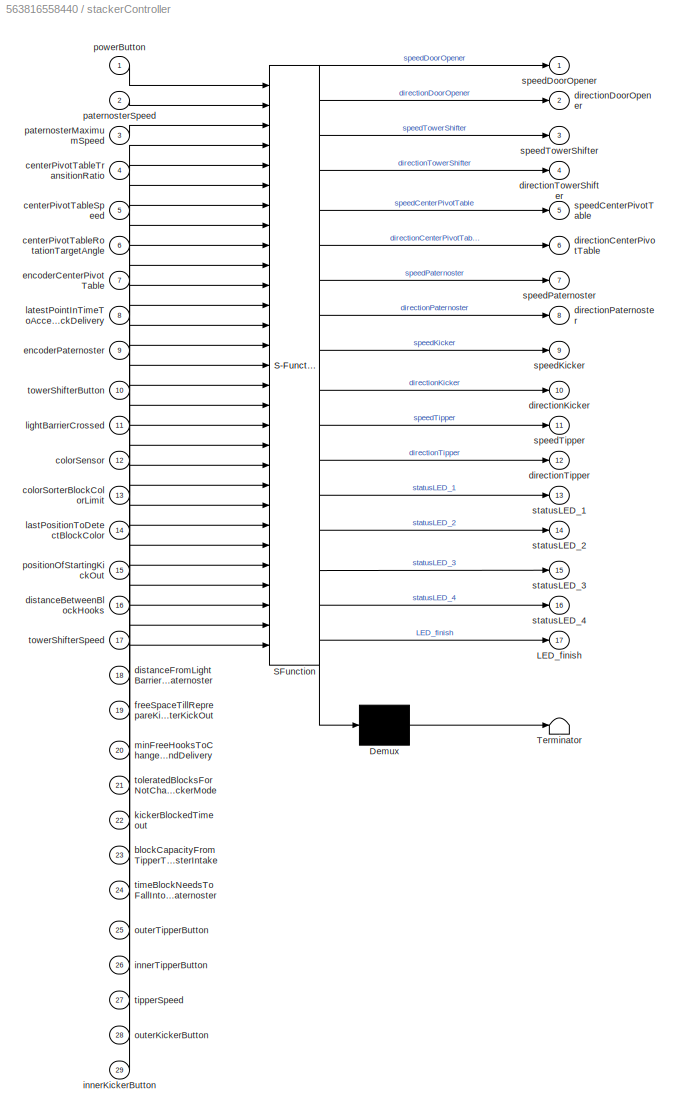
BLOCK [SubSystem] stackerController
  ErrorFcn = Stateflow.Translate.translate
  PermitHierarchicalResolution = ExplicitOnly
  Ports = [29, 17]
  RequestExecContextInheritance = off
  SFBlockType = Chart
  TreatAsAtomicUnit = on
BLOCK [Demux] stackerController/ Demux 
  Outputs = 1
  Ports = [1, 1]
BLOCK [S-Function] stackerController/ SFunction 
  EnableBusSupport = on
  FunctionName = sf_sfun
  PortCounts = [29 18]
  Ports = [29, 18]
  Tag = Stateflow S-Function superProgramParameterObserving 3
BLOCK [Terminator] stackerController/ Terminator 
BLOCK [Outport] stackerController/LED_finish
  IconDisplay = Port number
  Port = 17
BLOCK [Inport] stackerController/blockCapacityFromTipperToPaternosterIntake
  IconDisplay = Port number
  Port = 23
BLOCK [Inport] stackerController/centerPivotTableRotationTargetAngle
  IconDisplay = Port number
  Port = 6
BLOCK [Inport] stackerController/centerPivotTableSpeed
  IconDisplay = Port number
  Port = 5
BLOCK [Inport] stackerController/centerPivotTableTransitionRatio
  IconDisplay = Port number
  Port = 4
BLOCK [Inport] stackerController/colorSensor
  IconDisplay = Port number
  Port = 12
BLOCK [Inport] stackerController/colorSorterBlockColorLimit
  IconDisplay = Port number
  Port = 13
BLOCK [Outport] stackerController/directionCenterPivotTable
  IconDisplay = Port number
  Port = 6
BLOCK [Outport] stackerController/directionDoorOpener
  IconDisplay = Port number
  Port = 2
BLOCK [Outport] stackerController/directionKicker
  IconDisplay = Port number
  Port = 10
BLOCK [Outport] stackerController/directionPaternoster
  IconDisplay = Port number
  Port = 8
BLOCK [Outport] stackerController/directionTipper
  IconDisplay = Port number
  Port = 12
BLOCK [Outport] stackerController/directionTowerShifter
  IconDisplay = Port number
  Port = 4
BLOCK [Inport] stackerController/distanceBetweenBlockHooks
  IconDisplay = Port number
  Port = 16
BLOCK [Inport] stackerController/distanceFromLightBarrierToTDCOfPaternoster
  IconDisplay = Port number
  Port = 18
BLOCK [Inport] stackerController/encoderCenterPivotTable
  IconDisplay = Port number
  Port = 7
BLOCK [Inport] stackerController/encoderPaternoster
  IconDisplay = Port number
  Port = 9
BLOCK [Inport] stackerController/freeSpaceTillReprepareKickerAfterKickOut
  IconDisplay = Port number
  Port = 19
BLOCK [Inport] stackerController/innerKickerButton
  IconDisplay = Port number
  Port = 29
BLOCK [Inport] stackerController/innerTipperButton
  IconDisplay = Port number
  Port = 26
BLOCK [Inport] stackerController/kickerBlockedTimeout
  IconDisplay = Port number
  Port = 22
BLOCK [Inport] stackerController/lastPositionToDetectBlockColor
  IconDisplay = Port number
  Port = 14
BLOCK [Inport] stackerController/latestPointInTimeToAcceptBlockDelivery
  IconDisplay = Port number
  Port = 8
BLOCK [Inport] stackerController/lightBarrierCrossed
  IconDisplay = Port number
  Port = 11
BLOCK [Inport] stackerController/minFreeHooksToChangeModeToWaitingForSecondDelivery
  IconDisplay = Port number
  Port = 20
BLOCK [Inport] stackerController/outerKickerButton
  IconDisplay = Port number
  Port = 28
BLOCK [Inport] stackerController/outerTipperButton
  IconDisplay = Port number
  Port = 25
BLOCK [Inport] stackerController/paternosterMaximumSpeed
  IconDisplay = Port number
  Port = 3
BLOCK [Inport] stackerController/paternosterSpeed
  IconDisplay = Port number
  Port = 2
BLOCK [Inport] stackerController/positionOfStartingKickOut
  IconDisplay = Port number
  Port = 15
BLOCK [Inport] stackerController/powerButton
  IconDisplay = Port number
BLOCK [Outport] stackerController/speedCenterPivotTable
  IconDisplay = Port number
  Port = 5
BLOCK [Outport] stackerController/speedDoorOpener
  IconDisplay = Port number
BLOCK [Outport] stackerController/speedKicker
  IconDisplay = Port number
  Port = 9
BLOCK [Outport] stackerController/speedPaternoster
  IconDisplay = Port number
  Port = 7
BLOCK [Outport] stackerController/speedTipper
  IconDisplay = Port number
  Port = 11
BLOCK [Outport] stackerController/speedTowerShifter
  IconDisplay = Port number
  Port = 3
BLOCK [Outport] stackerController/statusLED_1
  IconDisplay = Port number
  Port = 13
BLOCK [Outport] stackerController/statusLED_2
  IconDisplay = Port number
  Port = 14
BLOCK [Outport] stackerController/statusLED_3
  IconDisplay = Port number
  Port = 15
BLOCK [Outport] stackerController/statusLED_4
  IconDisplay = Port number
  Port = 16
BLOCK [Inport] stackerController/timeBlockNeedsToFallIntoTowerFromTopOfPaternoster
  IconDisplay = Port number
  Port = 24
BLOCK [Inport] stackerController/tipperSpeed
  IconDisplay = Port number
  Port = 27
BLOCK [Inport] stackerController/toleratedBlocksForNotChangingStackerMode
  IconDisplay = Port number
  Port = 21
BLOCK [Inport] stackerController/towerShifterButton
  IconDisplay = Port number
  Port = 10
BLOCK [Inport] stackerController/towerShifterSpeed
  IconDisplay = Port number
  Port = 17
BLOCK [Constant] timeBlockNeedsToFallIntorTowerFromTopOfPaternoster [msec]
  OutDataTypeStr = uint16
  OutMin = 0
  Value = 500
BLOCK [Constant] tipperSpeed
  OutDataTypeStr = uint16
  OutMax = 100
  OutMin = 0
  Value = 100
BLOCK [Constant] toleratedFreeHooksForNotChangingStackerMode
  OutDataTypeStr = uint16
  OutMin = 0
  Value = 6
BLOCK [Constant] towerShifterSpeed
  OutDataTypeStr = uint16
  OutMax = 100
  OutMin = 0
  Value = 65
LINE ADC:1 -> lightBarrierCrossedIntensionLimit:1
LINE ADC:2 -> stackerController:12
LINE LEDsOnBoard/LED_1:1 -> LEDsOnBoard/[LED_1]:1
LINE LEDsOnBoard/LED_2:1 -> LEDsOnBoard/[LED_2]:1
LINE LEDsOnBoard/LED_3:1 -> LEDsOnBoard/[LED_3]:1
LINE LEDsOnBoard/LED_4:1 -> LEDsOnBoard/[LED_4]:1
LINE [DI0] powerButton:1 -> stackerController:1
LINE [DI1] encoderCenterPivotTable:1 -> stackerController:7
LINE [DI2] encoderPaternoster:1 -> stackerController:9
LINE [DI3] towerShifterButton:1 -> stackerController:10
LINE [DI4] outerKickerButton:1 -> stackerController:28
LINE [DI5] innerKickerButton:1 -> stackerController:29
LINE [DI6] outerTipperButton:1 -> stackerController:25
LINE [DI7] innerTipperButton:1 -> stackerController:26
LINE blockCapacityFromTipperToPaternosterIntake:1 -> stackerController:23
LINE centerPivotTableRotationTargetAngle:1 -> stackerController:6
LINE centerPivotTableSpeed:1 -> stackerController:5
LINE centerPivotTableTransitionRatio:1 -> stackerController:4
LINE colorSorterBlockColorLimit:1 -> stackerController:13
LINE distanceBetweenBlockHooks:1 -> stackerController:16
LINE distanceFromLightBarrierToTDCOfPaternoster:1 -> stackerController:18
LINE freeSpaceTillReprepareKickerAfterKickOut:1 -> stackerController:19
LINE kickerBlockedTimeout [msec]:1 -> stackerController:22
LINE lastPositionToDetectBlockColor:1 -> stackerController:14
LINE latestPointInTimeToAcceptBlockDelivery [sec]:1 -> stackerController:8
LINE lightBarrierCrossedIntensionLimit:1 -> stackerController:11
LINE minFreeHooksToChangeModeToWaitingForSecondDelivery:1 -> stackerController:20
LINE paternosterMaximumSpeed:1 -> stackerController:3
LINE paternosterSpeed:1 -> stackerController:2
LINE positionOfStartingKickOut:1 -> stackerController:15
LINE stackerController:1 -> [M2] speedDoorOpener:1
LINE stackerController:10 -> directionKicker:1
LINE stackerController:11 -> [M4] speedTipper:1
LINE stackerController:12 -> directionTipper:1
LINE stackerController:13 -> LEDsOnBoard:1
LINE stackerController:14 -> LEDsOnBoard:2
LINE stackerController:15 -> LEDsOnBoard:3
LINE stackerController:16 -> LEDsOnBoard:4
LINE stackerController:17 -> LED_finish:1
LINE stackerController:2 -> directionDoorOpener:1
LINE stackerController:3 -> [M6] speedTowerShifter:1
LINE stackerController:4 -> direcitonTowerShifter:1
LINE stackerController:5 -> [M1] speedCenterPivotTable:1
LINE stackerController:6 -> directionCenterPivotTableMotor:1
LINE stackerController:7 -> [M5] speedPaternoster:1
LINE stackerController:8 -> directionPaternoster:1
LINE stackerController:9 -> [M3] speedKicker:1
LINE timeBlockNeedsToFallIntorTowerFromTopOfPaternoster [msec]:1 -> stackerController:24
LINE tipperSpeed:1 -> stackerController:27
LINE toleratedFreeHooksForNotChangingStackerMode:1 -> stackerController:21
LINE towerShifterSpeed:1 -> stackerController:17
CHART stackerController states=184 transitions=225
  STATE_LABEL 'stateOne'
  STATE_LABEL 'storeValue\nentry: lightBarrierTriggeredValue = lightBarrierCrossed;\n colorSensorTriggeredValue = colorSensor;'
  STATE_LABEL 'idle'
  STATE_LABEL 'start\nentry: lightBarrierTriggeredValue = false;\n colorSensorTriggeredValue = uint16(9999);'
  STATE_LABEL 'wait'
  STATE_LABEL 'after(0.01,msec)'
  STATE_LABEL 'after(0.01,msec)'
  STATE_LABEL 'storeValue\nentry: lightBarrierTriggeredValue = lightBarrierCrossed;\n colorSensorTriggeredValue = colorSensor;'
  STATE_LABEL 'idle'
  STATE_LABEL 'start\nentry: lightBarrierTriggeredValue = false;\n colorSensorTriggeredValue = uint16(9999);'
  STATE_LABEL 'wait'
  STATE_LABEL 'startingSequence'
  STATE_LABEL 'prepareStacker\n\nentry:\nstackerMode = int16(0);\nspeedCenterPivotTable = uint16(0);\ndirectionCenterPivotTable = true;\nspeedTowerShifter = uint16(0);\ndirectionTowerShifter = true;\nspeedDoorOpener = uint16(75);\ndirectionDoorOpener = false;\npaternosterSpeed_controller.setPaternosterSpeed(uint16(0));\ndirectionPaternoster = true;\nspeedKicker = uint16(0);\ndirectionKicker = true;\nspeedTipper = uint16(0);\nd...<+37ch>'
  STATE_LABEL 'prepareTipper'
  STATE_LABEL 'tipperPreparation\nentry: directionTipper = true;\n speedTipper = tipperSpeed;\n'
  STATE_LABEL 'stopKickerInStartingPosition\nentry: speedTipper = uint16(0);'
  STATE_LABEL '[innerTipperButton == true]'
  STATE_LABEL 'prepareKicker\n'
  STATE_LABEL 'startKickerMovement\nentry: speedKicker = uint16(100);\n directionKicker = true;'
  STATE_LABEL 'stopKickerMovement\nentry: speedKicker = uint16(0);'
  STATE_LABEL '[innerKickerButton == true]'
  STATE_LABEL 'shiftStackerAndOpenDoor'
  STATE_LABEL 'blockTowerIdle'
  STATE_LABEL 'shiftTowerForwards\nentry: speedDoorOpener = uint16(0);\n directionTowerShifter = false;\n speedTowerShifter = towerShifterSpeed;'
  STATE_LABEL 'stopOpeningDoor\nentry: speedDoorOpener = uint16(0);'
  STATE_LABEL 'stopTowerShifting\nentry: speedTowerShifter = uint16(0);\n directionTowerShifter = true;'
  STATE_LABEL 'openDoor\nentry: directionDoorOpener = true;\n speedDoorOpener = uint16(70);'
  STATE_LABEL '[towerShifterButton == true]'
  STATE_LABEL '[towerShifterButton == false]'
  STATE_LABEL '[towerShifterButton == false]'
  STATE_LABEL '[towerShifterButton == true]'
  STATE_LABEL '[towerShifterButton == true]'
  STATE_LABEL 'emptyTipper'
  STATE_LABEL 'wait_1'
  STATE_LABEL 'moveTipperIn\nentry: directionTipper = true;'
  STATE_LABEL 'tipperIdle'
  STATE_LABEL 'moveTipperOut\nentry: directionTipper = false;\n speedTipper = tipperSpeed;'
  STATE_LABEL 'wait_2'
  STATE_LABEL '[[outerTipperButton == true] && [innerTipperButton == true]]'
  STATE_LABEL 'after(1300,msec)'
